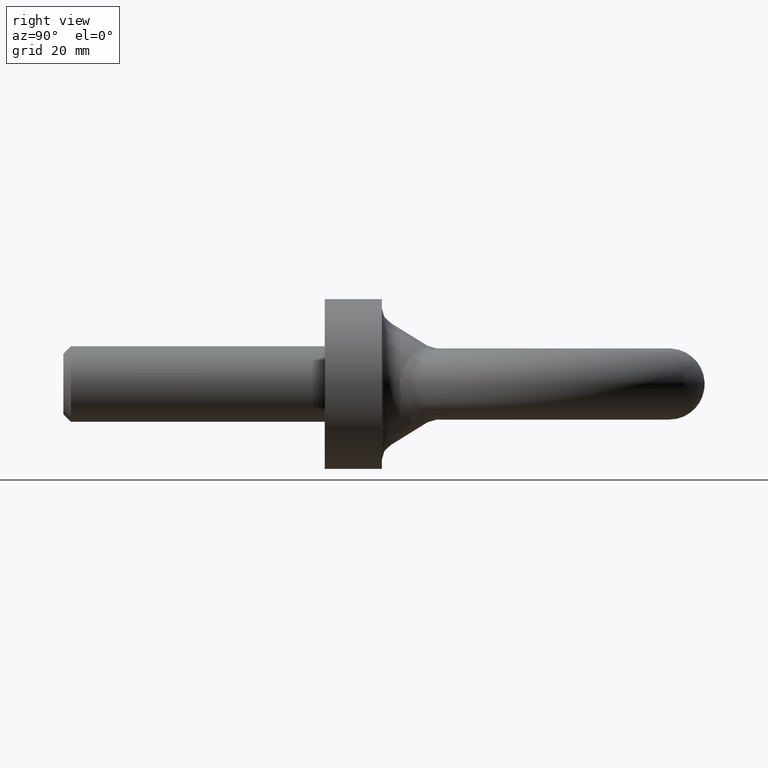
[diagram: clean part render]
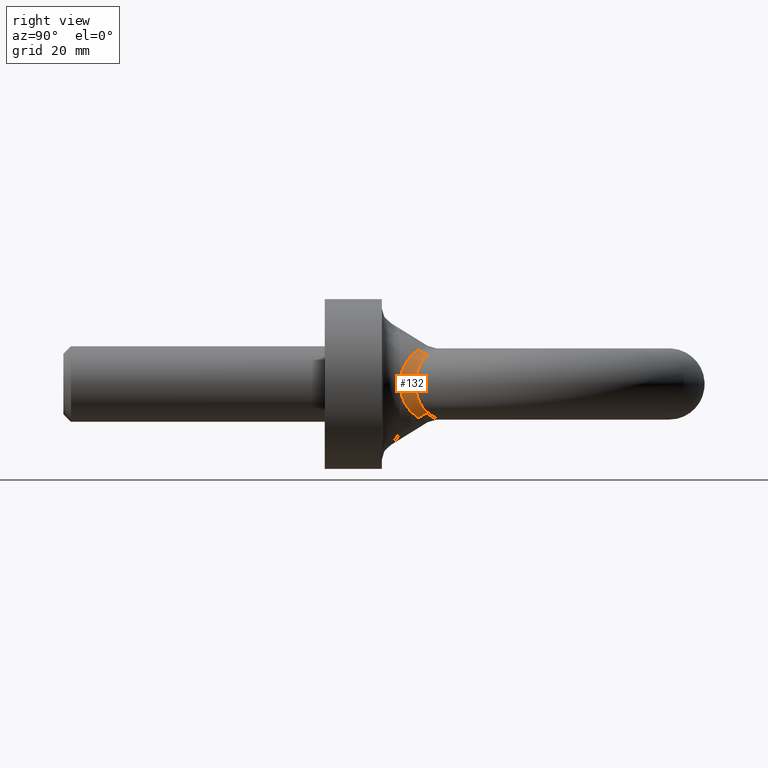
[diagram: same view with one face highlighted and labeled with its STEP entity id]
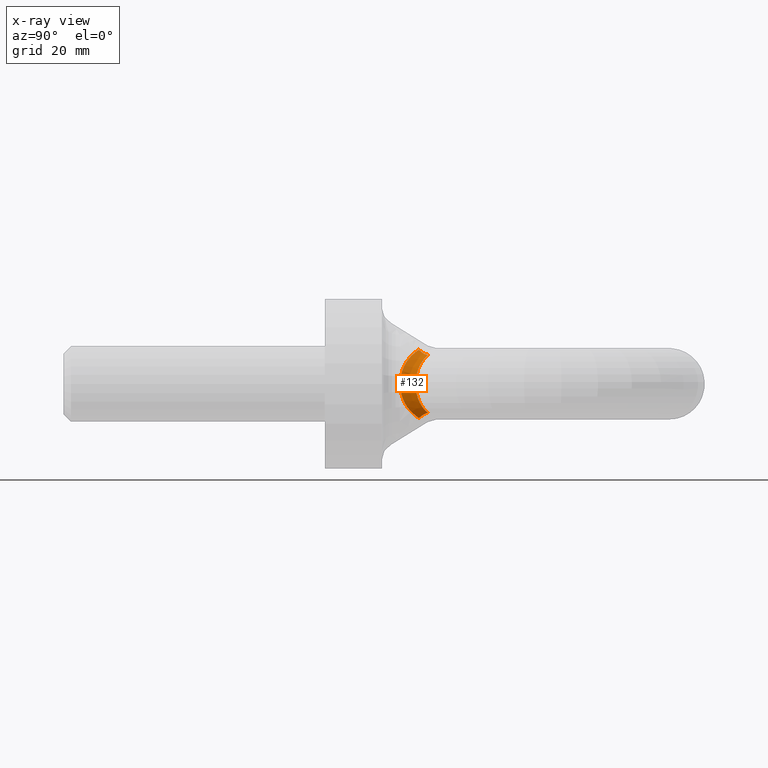
[diagram: x-ray of the same camera — body ghosted, the highlighted face saturated]
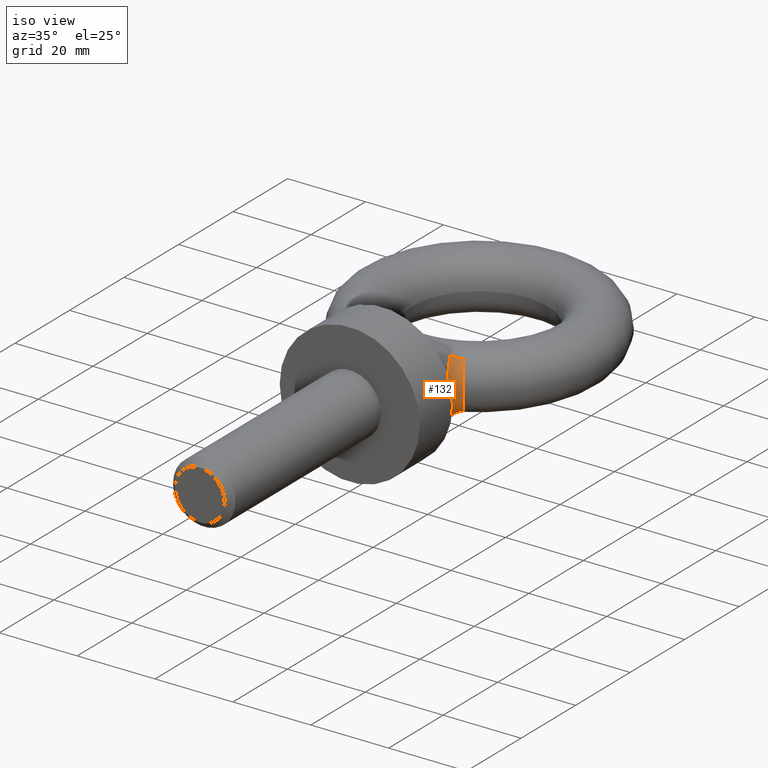
[diagram: same view with one face highlighted and labeled with its STEP entity id]
A machine part, right view. The second image highlights one B-rep face of the part: STEP entity #132.
The next image is the same camera in x-ray: the body ghosted, the highlighted face saturated — about 0% of this face is hidden behind the body in this view.
A second angle (iso view) of the same face is appended — the face is thin or edge-on in the first view.
In plain terms, the highlighted face is a freeform B-spline surface patch.
Its self-contained STEP definition (entity closure, byte-faithful):
#93=(
BOUNDED_SURFACE()
B_SPLINE_SURFACE(3,2,((#1062,#1063,#1064),(#1065,#1066,#1067),(#1068,#1069,
#1070),(#1071,#1072,#1073),(#1074,#1075,#1076),(#1077,#1078,#1079),(#1080,
#1081,#1082),(#1083,#1084,#1085),(#1086,#1087,#1088),(#1089,#1090,#1091)),
 .UNSPECIFIED.,.F.,.F.,.F.)
B_SPLINE_SURFACE_WITH_KNOTS((4,2,2,2,4),(3,3),(0.,0.25,0.5,0.75,1.),(0.,
1.),.UNSPECIFIED.)
GEOMETRIC_REPRESENTATION_ITEM()
RATIONAL_B_SPLINE_SURFACE(((1.,0.910339448279826,1.),(1.,0.900933812449548,
1.),(1.,0.888046820043179,1.),(1.,0.868650031138097,1.),(1.,0.862343485682607,
1.),(1.,0.862385829660709,1.),(1.,0.868710016643622,1.),(1.,0.888075216682029,
1.),(1.,0.901076544109385,1.),(1.,0.910339448279826,1.)))
REPRESENTATION_ITEM('')
SURFACE()
);
#132=ADVANCED_FACE('',(#165),#93,.T.);
#165=FACE_OUTER_BOUND('',#199,.T.);
#199=EDGE_LOOP('',(#337,#338,#339,#340));
#212=B_SPLINE_CURVE_WITH_KNOTS('',3,(#648,#649,#650,#651,#652,#653,#654,
#655,#656,#657),.UNSPECIFIED.,.F.,.F.,(4,2,2,2,4),(0.,0.25,0.5,0.75,1.),
 .UNSPECIFIED.);
#228=B_SPLINE_CURVE_WITH_KNOTS('',3,(#888,#889,#890,#891,#892,#893,#894,
#895,#896,#897),.UNSPECIFIED.,.F.,.F.,(4,2,2,2,4),(0.,0.25,0.5,0.75,1.),
 .UNSPECIFIED.);
#249=CIRCLE('',#521,3.75);
#251=CIRCLE('',#523,3.75);
#337=ORIENTED_EDGE('',*,*,#469,.T.);
#338=ORIENTED_EDGE('',*,*,#423,.F.);
#339=ORIENTED_EDGE('',*,*,#471,.F.);
#340=ORIENTED_EDGE('',*,*,#457,.F.);
#383=VERTEX_POINT('',#642);
#386=VERTEX_POINT('',#647);
#412=VERTEX_POINT('',#898);
#413=VERTEX_POINT('',#899);
#423=EDGE_CURVE('',#386,#383,#212,.T.);
#457=EDGE_CURVE('',#412,#413,#228,.T.);
#469=EDGE_CURVE('',#412,#383,#249,.T.);
#471=EDGE_CURVE('',#413,#386,#251,.T.);
#521=AXIS2_PLACEMENT_3D('',#1023,#606,#607);
#523=AXIS2_PLACEMENT_3D('',#1061,#610,#611);
#606=DIRECTION('',(-0.350275113446739,0.731782412505279,0.58463821774481));
#607=DIRECTION('',(0.,-0.624182113019711,0.78127888092937));
#610=DIRECTION('',(0.35027511344674,-0.731782412505278,0.58463821774481));
#611=DIRECTION('',(0.,-0.624182113019711,-0.78127888092937));
#642=CARTESIAN_POINT('',(12.0095006249584,19.7833483626237,7.19526891360731));
#647=CARTESIAN_POINT('',(12.0095006249584,19.7833483626237,-7.19526891360732));
#648=CARTESIAN_POINT('',(12.0095006249584,19.7833483626237,-7.19526891360732));
#649=CARTESIAN_POINT('',(12.4619645533963,18.5848789105656,-6.44006908763968));
#650=CARTESIAN_POINT('',(12.9747116158951,17.5994017096909,-5.41624907304678));
#651=CARTESIAN_POINT('',(13.7483719355801,16.2280926861117,-2.94298567068875));
#652=CARTESIAN_POINT('',(13.998985388683,15.8477698349804,-1.48516128774165));
#653=CARTESIAN_POINT('',(14.0010080348829,15.8445674697743,1.46597065806625));
#654=CARTESIAN_POINT('',(13.7502974453004,16.2249305646339,2.93493439351274));
#655=CARTESIAN_POINT('',(12.9764202026357,17.5961235888565,5.41267387278117));
#656=CARTESIAN_POINT('',(12.4620952690491,18.5845326758563,6.43985091237307));
#657=CARTESIAN_POINT('',(12.0095006249584,19.7833483626237,7.19526891360731));
#888=CARTESIAN_POINT('',(14.1741981581779,21.709147065367,6.08171539126332));
#889=CARTESIAN_POINT('',(14.5745700498036,20.8251840573748,5.38336660200797));
#890=CARTESIAN_POINT('',(15.0470120869435,20.1871264750595,4.46115483519046));
#891=CARTESIAN_POINT('',(15.7196351807305,19.33390725905,2.3627708228722));
#892=CARTESIAN_POINT('',(15.9231731267235,19.1198969437814,1.17843229862993));
#893=CARTESIAN_POINT('',(15.9217322689945,19.1215040983683,-1.1917576663875));
#894=CARTESIAN_POINT('',(15.7175340120673,19.3363814928695,-2.37096689962735));
#895=CARTESIAN_POINT('',(15.0458441147134,20.1888000631012,-4.46314949314594));
#896=CARTESIAN_POINT('',(14.5749269617328,20.8243960476541,-5.382744058271));
#897=CARTESIAN_POINT('',(14.1741981581779,21.709147065367,-6.08171539126333));
#898=CARTESIAN_POINT('',(14.1741981581779,21.709147065367,6.08171539126332));
#899=CARTESIAN_POINT('',(14.1741981581779,21.709147065367,-6.08171539126333));
#1023=CARTESIAN_POINT('',(15.2263311495008,19.7833483626237,9.12257308689498));
#1061=CARTESIAN_POINT('',(15.2263311495008,19.7833483626237,-9.12257308689499));
#1062=CARTESIAN_POINT('',(12.0095006249584,19.7833483626237,7.19526891360731));
#1063=CARTESIAN_POINT('',(12.6506878221908,20.9452628554576,6.12507429846027));
#1064=CARTESIAN_POINT('',(14.1741981581779,21.709147065367,6.08171539126333));
#1065=CARTESIAN_POINT('',(12.5045943217834,18.471962790554,6.36891646829592));
#1066=CARTESIAN_POINT('',(13.013245020926,19.9023400653145,5.35079476568413));
#1067=CARTESIAN_POINT('',(14.5747012356241,20.8248944354474,5.38313779206965));
#1068=CARTESIAN_POINT('',(13.0314378256695,17.4934302589551,5.27864018335863));
#1069=CARTESIAN_POINT('',(13.3809109965646,19.1923932463769,4.35874108152244));
#1070=CARTESIAN_POINT('',(15.0468384435285,20.1873454405342,4.46170777416222));
#1071=CARTESIAN_POINT('',(13.7794164998043,16.1791704243974,2.79465470399808));
#1072=CARTESIAN_POINT('',(13.8720643043939,18.2602163986113,2.24092632940871));
#1073=CARTESIAN_POINT('',(15.7198310265207,19.3336601300102,2.36214861872262));
#1074=CARTESIAN_POINT('',(14.0007598855151,15.8449603544561,1.39356809677163));
#1075=CARTESIAN_POINT('',(14.0004614490268,18.0469537273524,1.1199315901202));
#1076=CARTESIAN_POINT('',(15.9231481854227,19.1199247635225,1.17789684369955));
#1077=CARTESIAN_POINT('',(13.999235974502,15.8473730927747,-1.40879435773901));
#1078=CARTESIAN_POINT('',(13.9995360597023,18.0485710209304,-1.13211247782833));
#1079=CARTESIAN_POINT('',(15.9217574824953,19.1214759750112,-1.19076665951721));
#1080=CARTESIAN_POINT('',(13.7771863037371,16.1828689918059,-2.80394936579447));
#1081=CARTESIAN_POINT('',(13.8706391827246,18.2627845004087,-2.24874567064561));
#1082=CARTESIAN_POINT('',(15.7178066569336,19.3360486621787,-2.37000482081413));
#1083=CARTESIAN_POINT('',(13.0302594514352,17.4957218353216,-5.28065650483954));
#1084=CARTESIAN_POINT('',(13.3800822906579,19.1941003926624,-4.36066908324608));
#1085=CARTESIAN_POINT('',(15.0457960387626,20.1888479054995,-4.46341204603129));
#1086=CARTESIAN_POINT('',(12.4987015654873,18.4875713032108,-6.37875196732598));
#1087=CARTESIAN_POINT('',(13.0088958781107,19.9148506993752,-5.36008282329087));
#1088=CARTESIAN_POINT('',(14.5696941362716,20.8359493845344,-5.39187142701364));
#1089=CARTESIAN_POINT('',(12.0095006249584,19.7833483626237,-7.19526891360732));
#1090=CARTESIAN_POINT('',(12.6506878221908,20.9452628554576,-6.12507429846027));
#1091=CARTESIAN_POINT('',(14.1741981581779,21.709147065367,-6.08171539126333));